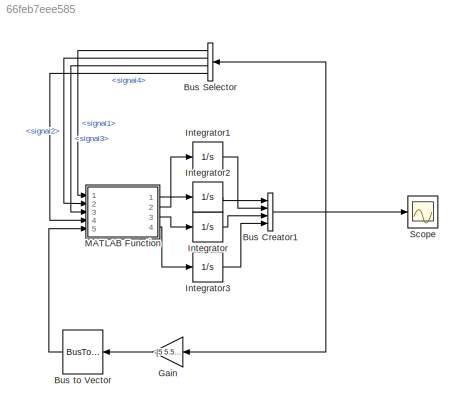
MODEL slx_66feb7eee585
KIND model
CONFIG AbsTol = auto
CONFIG EnableMultiTasking = off
CONFIG FixedStep = 0.0005
CONFIG MaxStep = auto
CONFIG MinStep = auto
CONFIG RelTol = 1e-3
CONFIG SampleTimeConstraint = Unconstrained
CONFIG Solver = FixedStepAuto
CONFIG SolverName = FixedStepAuto
CONFIG StartTime = 0.0
CONFIG StopTime = 10.0
BLOCK [BusCreator] Bus Creator1
  DisplayOption = bar
  InheritFromInputs = on
  Inputs = 4
  Ports = [4, 1]
BLOCK [BusSelector] Bus Selector
  OutputAsBus = off
  OutputSignals = signal1,signal2,signal3,signal4
  Ports = [1, 4]
BLOCK [BusToVector] Bus to Vector
BLOCK [Gain] Gain
  Gain = -[5 5.5 -5 -5.5; 5 5.5 5 5.5]
  Multiplication = Matrix(K*u)
  OutDataTypeStr = Inherit: Inherit via internal rule
  ParamDataTypeStr = Inherit: Inherit via internal rule
  SaturateOnIntegerOverflow = off
BLOCK [Integrator] Integrator
  InitialCondition = 1
  Ports = [1, 1]
BLOCK [Integrator] Integrator1
  InitialCondition = 1
  Ports = [1, 1]
BLOCK [Integrator] Integrator2
  InitialCondition = 1
  Ports = [1, 1]
BLOCK [Integrator] Integrator3
  InitialCondition = 1
  Ports = [1, 1]
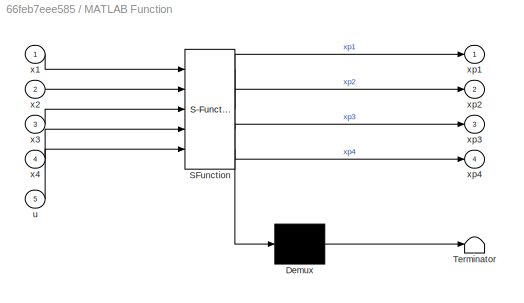
BLOCK [SubSystem] MATLAB Function
  ErrorFcn = Stateflow.Translate.translate
  PermitHierarchicalResolution = ExplicitOnly
  Ports = [5, 4]
  RequestExecContextInheritance = off
  SFBlockType = MATLAB Function
  TreatAsAtomicUnit = on
BLOCK [Demux] MATLAB Function/ Demux 
  Outputs = 1
  Ports = [1, 1]
BLOCK [S-Function] MATLAB Function/ SFunction 
  EnableBusSupport = on
  FunctionName = sf_sfun
  PortCounts = [5 5]
  Ports = [5, 5]
  SFcnIsStateOwnerBlock = off
  SFunctionDeploymentMode = off
  Tag = Stateflow S-Function project2Nonlinear 2
BLOCK [Terminator] MATLAB Function/ Terminator 
BLOCK [Inport] MATLAB Function/u
  IconDisplay = Port number
  Port = 5
BLOCK [Inport] MATLAB Function/x1
  IconDisplay = Port number
BLOCK [Inport] MATLAB Function/x2
  IconDisplay = Port number
  Port = 2
BLOCK [Inport] MATLAB Function/x3
  IconDisplay = Port number
  Port = 3
BLOCK [Inport] MATLAB Function/x4
  IconDisplay = Port number
  Port = 4
BLOCK [Outport] MATLAB Function/xp1
  IconDisplay = Port number
BLOCK [Outport] MATLAB Function/xp2
  IconDisplay = Port number
  Port = 2
BLOCK [Outport] MATLAB Function/xp3
  IconDisplay = Port number
  Port = 3
BLOCK [Outport] MATLAB Function/xp4
  IconDisplay = Port number
  Port = 4
BLOCK [Scope] Scope
  Floating = off
  NumInputPorts = 1
  Ports = [1]
  ScopeSpecificationString = Simulink.scopes.TimeScopeBlockCfg('CurrentConfiguration', extmgr.ConfigurationSet(extmgr.Configuration('Core','General UI',true),extmgr.Configuration('Core','Source UI',true),extmgr.Configuration('Sources','WiredSimulink',true),extmgr.Configuration('Visuals','Time Domain',true),extmgr.Configuration('Tools','Plot Navigation',true),extmgr.Configuration('Tools','Measurements',true)),'Version','2018b'...<+1ch>
NET Bus Creator1:1 -> Bus Selector:1, Gain:1, Scope:1
LINE Bus Selector:1 -> MATLAB Function:1
LINE Bus Selector:2 -> MATLAB Function:2
LINE Bus Selector:3 -> MATLAB Function:3
LINE Bus Selector:4 -> MATLAB Function:4
LINE Bus to Vector:1 -> MATLAB Function:5
LINE Gain:1 -> Bus to Vector:1
LINE Integrator1:1 -> Bus Creator1:2
LINE Integrator2:1 -> Bus Creator1:1
LINE Integrator3:1 -> Bus Creator1:4
LINE Integrator:1 -> Bus Creator1:3
LINE MATLAB Function:1 -> Integrator2:1
LINE MATLAB Function:2 -> Integrator1:1
LINE MATLAB Function:3 -> Integrator:1
LINE MATLAB Function:4 -> Integrator3:1
note: NET lines group one-source signal fan-out (src -> all destinations, sorted); 1:1 wires keep LINE
CHART MATLAB Function states=1 transitions=1
  STATE_LABEL 'eML_blk_kernel()'
  STATE_LABEL 'SCRIPT:\nfunction [xp1, xp2, xp3, xp4] = fcn(x1,x2,x3,x4,u)\n% constants\nl = 0;\nM = 0;\nJ = 0;\ng = 9.81;\n% states\n% x1 = x(1);\n% x2 = x(2);\n% x3 = x(3);\n% x4 = x(4);\n% inputs\nF1 = u(1);\nF2 = u(2);\n% nonlinear equations\nxp1 = x2;\nxp2 = ((F1+F2)/M)*cos(x3)+g;\nxp3 = x4;\nxp4 = ((F2-F2)/J)*l;\nxp = [xp1; xp2; xp3; xp4];\ny = xp;\n'
